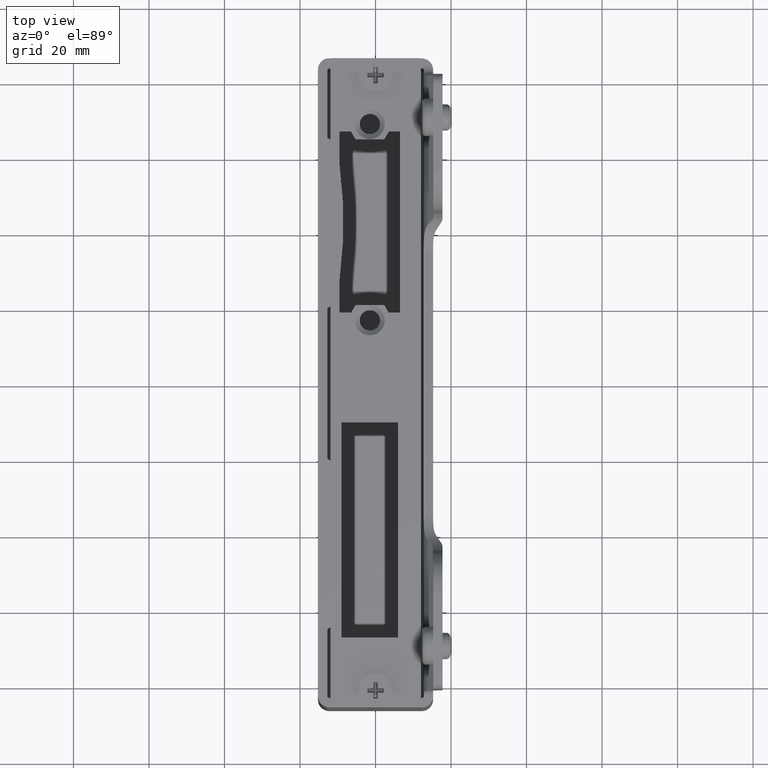
[diagram: clean part render]
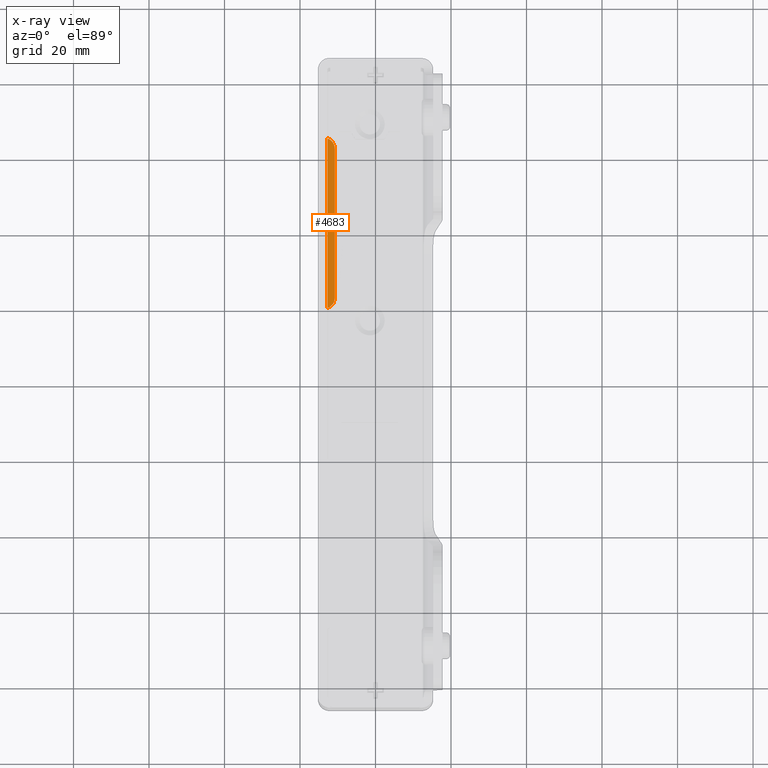
[diagram: x-ray — body ghosted, one internal face saturated and labeled with its STEP entity id]
A machine part, top view, then the same camera in x-ray: the body is ghosted and one INTERNAL B-rep face — a face not visible from any outside direction — is saturated and labeled: STEP entity #4683.
In plain terms, the highlighted planar face has unit normal (0, 0, 1).
Its self-contained STEP definition (entity closure, byte-faithful):
#2107 = CARTESIAN_POINT ( 'NONE',  ( -10.75000000000001066, 65.00000000000000000, 16.50000000000000355 ) ) ;
#2642 = VERTEX_POINT ( 'NONE', #23753 ) ;
#4683 = ADVANCED_FACE ( 'NONE', ( #10480 ), #7146, .F. ) ;
#5561 = EDGE_CURVE ( 'NONE', #2642, #27717, #11706, .T. ) ;
#5572 = CARTESIAN_POINT ( 'NONE',  ( -12.75000000000001066, 65.00000000000000000, 16.50000000000000355 ) ) ;
#6008 = EDGE_CURVE ( 'NONE', #2642, #7597, #21217, .T. ) ;
#7146 = PLANE ( 'NONE',  #23115 ) ;
#7190 = EDGE_LOOP ( 'NONE', ( #18815, #15456, #7662, #25908 ) ) ;
#7597 = VERTEX_POINT ( 'NONE', #16161 ) ;
#7662 = ORIENTED_EDGE ( 'NONE', *, *, #6008, .F. ) ;
#9354 = DIRECTION ( 'NONE',  ( 1.000000000000000000, 0.000000000000000000, 0.000000000000000000 ) ) ;
#10170 = CIRCLE ( 'NONE', #20056, 2.999999999999999112 ) ;
#10480 = FACE_OUTER_BOUND ( 'NONE', #7190, .T. ) ;
#11706 = CIRCLE ( 'NONE', #27957, 2.999999999999999112 ) ;
#11907 = CARTESIAN_POINT ( 'NONE',  ( -12.75000000000000355, 20.00000000000000000, 16.50000000000000355 ) ) ;
#12999 = CARTESIAN_POINT ( 'NONE',  ( -10.75000000000001066, 65.00000000000000000, 16.50000000000000355 ) ) ;
#13817 = VECTOR ( 'NONE', #16790, 1000.000000000000000 ) ;
#15456 = ORIENTED_EDGE ( 'NONE', *, *, #19367, .T. ) ;
#15556 = LINE ( 'NONE', #5572, #13817 ) ;
#16161 = CARTESIAN_POINT ( 'NONE',  ( -10.75000000000001066, 62.17157287525381548, 16.50000000000000355 ) ) ;
#16790 = DIRECTION ( 'NONE',  ( -1.541976423090495387E-16, 1.000000000000000000, -0.000000000000000000 ) ) ;
#16927 = VERTEX_POINT ( 'NONE', #30328 ) ;
#17752 = VECTOR ( 'NONE', #23835, 1000.000000000000000 ) ;
#18815 = ORIENTED_EDGE ( 'NONE', *, *, #28353, .T. ) ;
#19367 = EDGE_CURVE ( 'NONE', #16927, #7597, #10170, .T. ) ;
#20056 = AXIS2_PLACEMENT_3D ( 'NONE', #34519, #28880, #9354 ) ;
#21217 = LINE ( 'NONE', #12999, #17752 ) ;
#21888 = DIRECTION ( 'NONE',  ( 0.000000000000000000, -0.000000000000000000, -1.000000000000000000 ) ) ;
#21967 = DIRECTION ( 'NONE',  ( 1.000000000000000000, 0.000000000000000000, 0.000000000000000000 ) ) ;
#23115 = AXIS2_PLACEMENT_3D ( 'NONE', #2107, #26446, #21967 ) ;
#23753 = CARTESIAN_POINT ( 'NONE',  ( -10.75000000000000533, 22.82842712474619162, 16.50000000000000355 ) ) ;
#23835 = DIRECTION ( 'NONE',  ( -1.541976423090495387E-16, 1.000000000000000000, -0.000000000000000000 ) ) ;
#25908 = ORIENTED_EDGE ( 'NONE', *, *, #5561, .T. ) ;
#26446 = DIRECTION ( 'NONE',  ( -0.000000000000000000, 0.000000000000000000, 1.000000000000000000 ) ) ;
#27717 = VERTEX_POINT ( 'NONE', #11907 ) ;
#27957 = AXIS2_PLACEMENT_3D ( 'NONE', #30760, #21888, #35705 ) ;
#28353 = EDGE_CURVE ( 'NONE', #27717, #16927, #15556, .T. ) ;
#28880 = DIRECTION ( 'NONE',  ( 0.000000000000000000, -0.000000000000000000, -1.000000000000000000 ) ) ;
#30328 = CARTESIAN_POINT ( 'NONE',  ( -12.75000000000001066, 65.00000000000000000, 16.50000000000000355 ) ) ;
#30760 = CARTESIAN_POINT ( 'NONE',  ( -13.75000000000000533, 22.82842712474619162, 16.50000000000000355 ) ) ;
#34519 = CARTESIAN_POINT ( 'NONE',  ( -13.75000000000001243, 62.17157287525381548, 16.50000000000000355 ) ) ;
#35705 = DIRECTION ( 'NONE',  ( 1.000000000000000000, 0.000000000000000000, 0.000000000000000000 ) ) ;